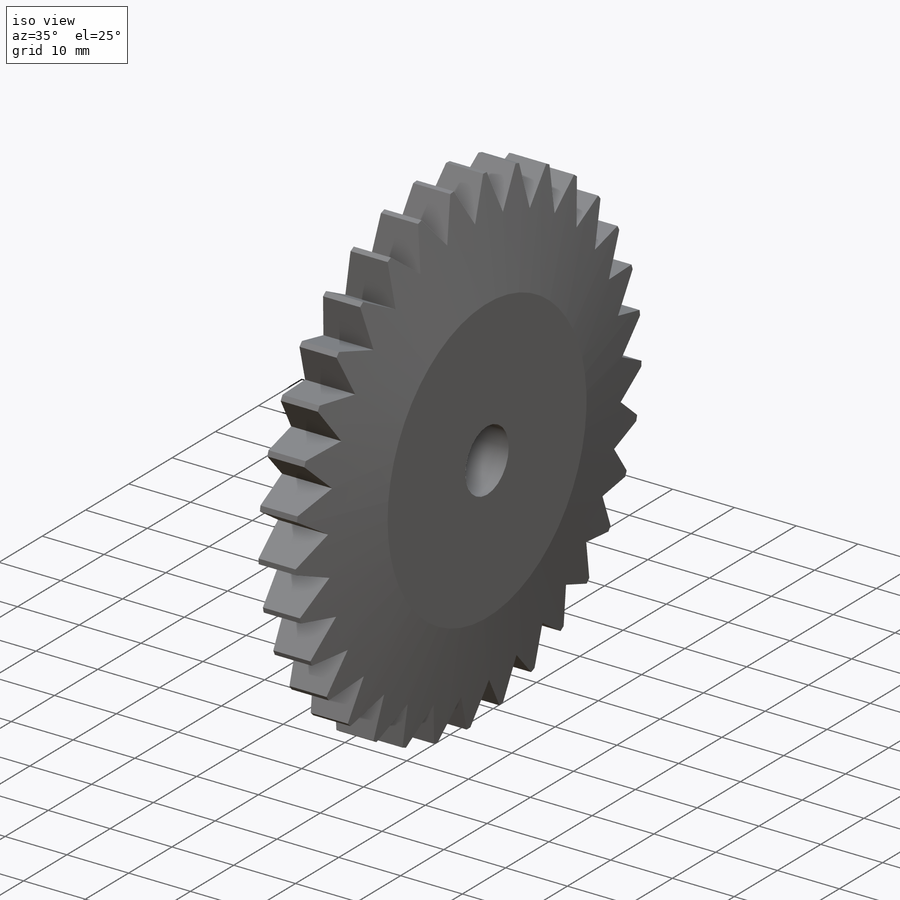
[diagram: iso view]
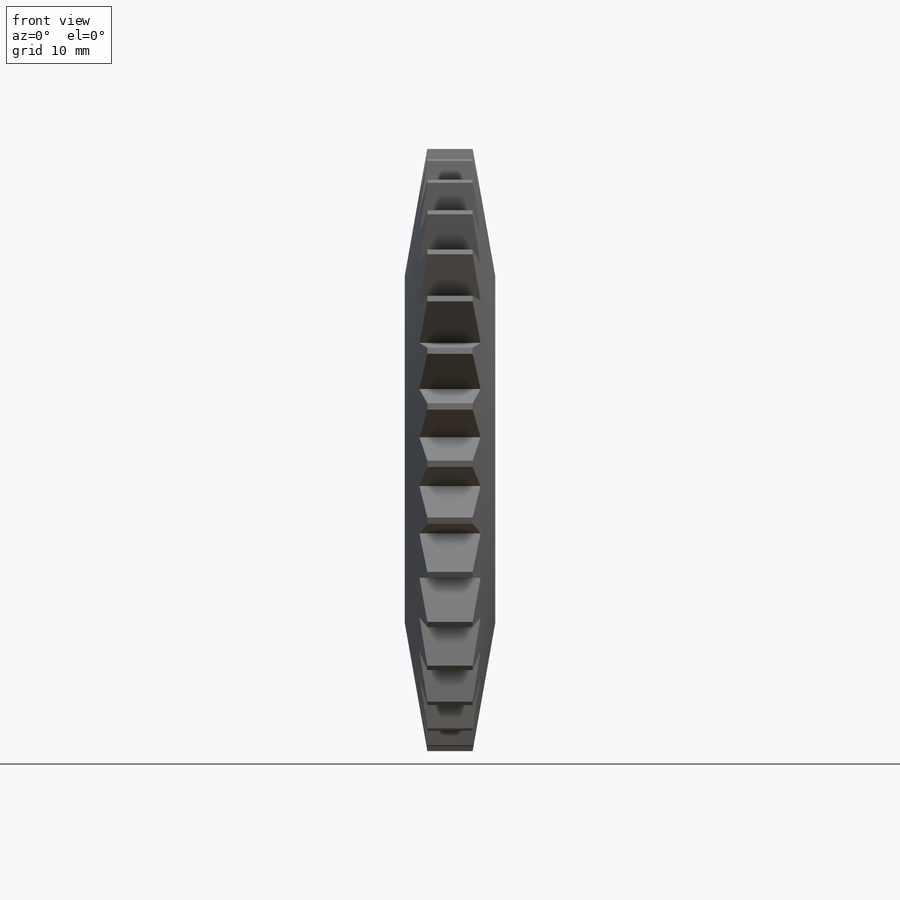
[diagram: front view]
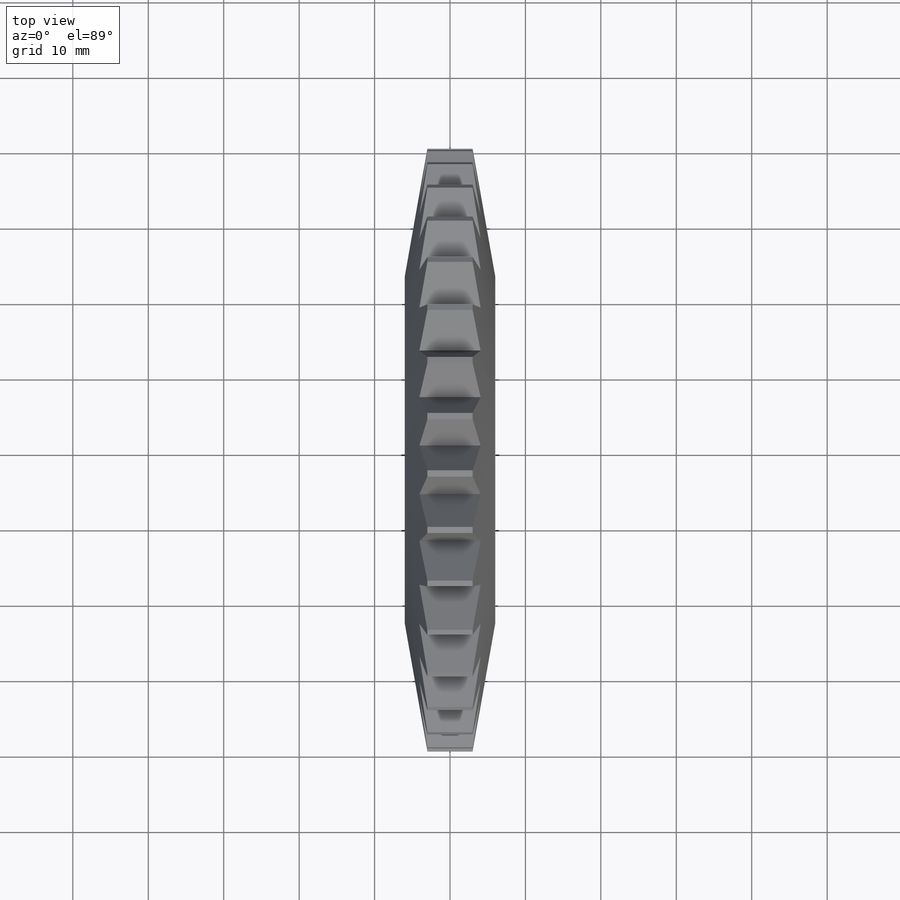
[diagram: top view]
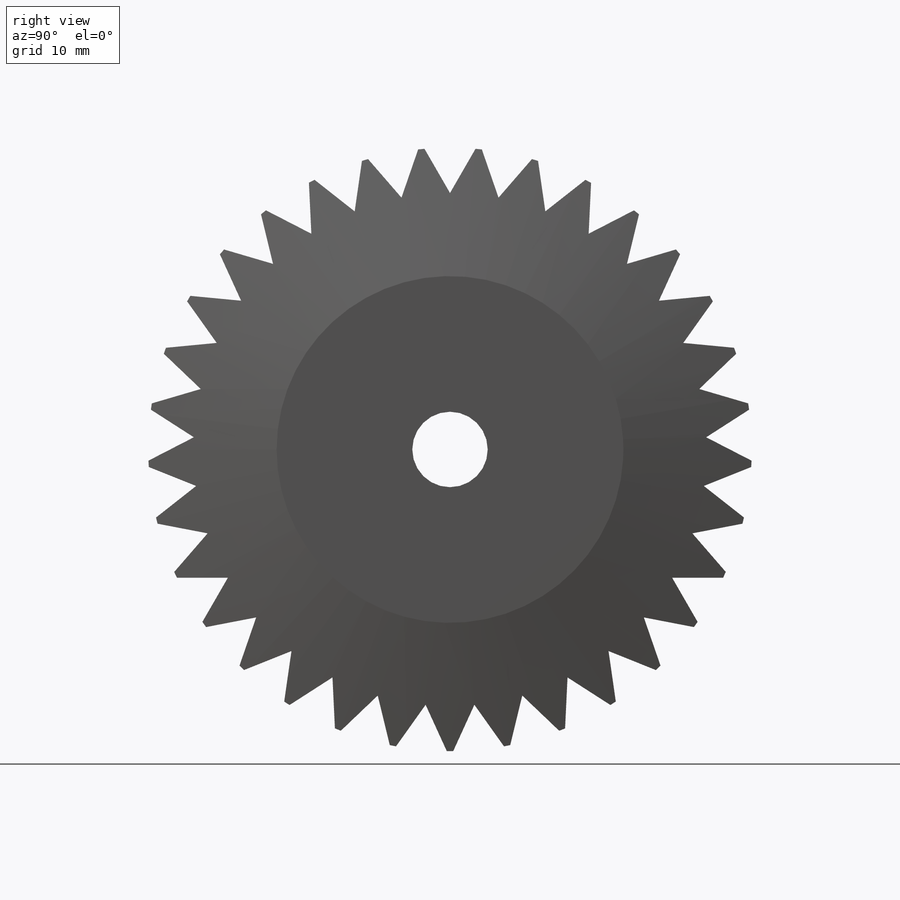
[diagram: right view]
SOLIDWORKS PART (.sldprt)
format: sldprt  version: not decoded by parser v0  size: 239,616 bytes
history: native  units: mm
features: sketch x2, chamfer x2, material x1, extrude x1, cut_extrude x1, pattern_circular x1 (+12 scaffold rows collapsed)
feature tree (20):
  scaffold x12  (default folders/planes/origin — collapsed)
  material  "Material <not specified>"
  sketch  "Sketch1"  dims[D1=80.0mm D2=10.0mm]
  extrude  "Boss-Extrude1"  Depth=12mm
  sketch  "Sketch2"  dims[c1.D1=~5.12769mm c2.D1=30.0deg c2.D2=~5.253354mm c3.D2=30.0deg c3.D3=6.0mm]
  chamfer  "Chamfer2"  Distance=3mm Angle=80deg
  chamfer  "Chamfer3"  Distance=3mm Angle=80deg
  cut_extrude  "Cut-Extrude2"  Depth=12mm
  pattern_circular  "CirPattern2"  Count=33 Angle=360deg
decode coverage: 7 of 7 modeling features carry decoded parameters
note: ~ marks probable driven/reference dimensions
note: suppression state not decoded; provenance and decode notes live in map.json
